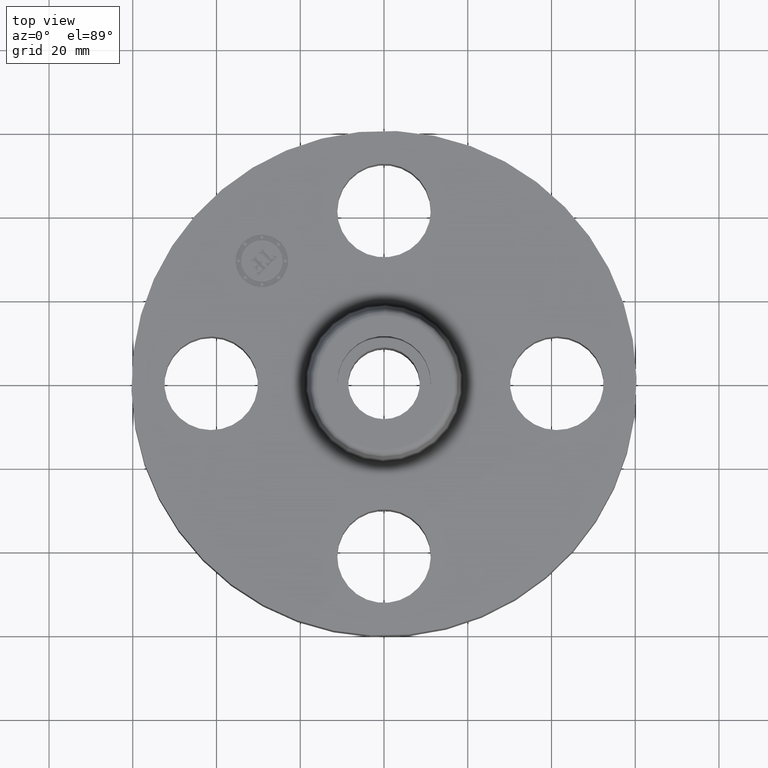
[diagram: clean part render]
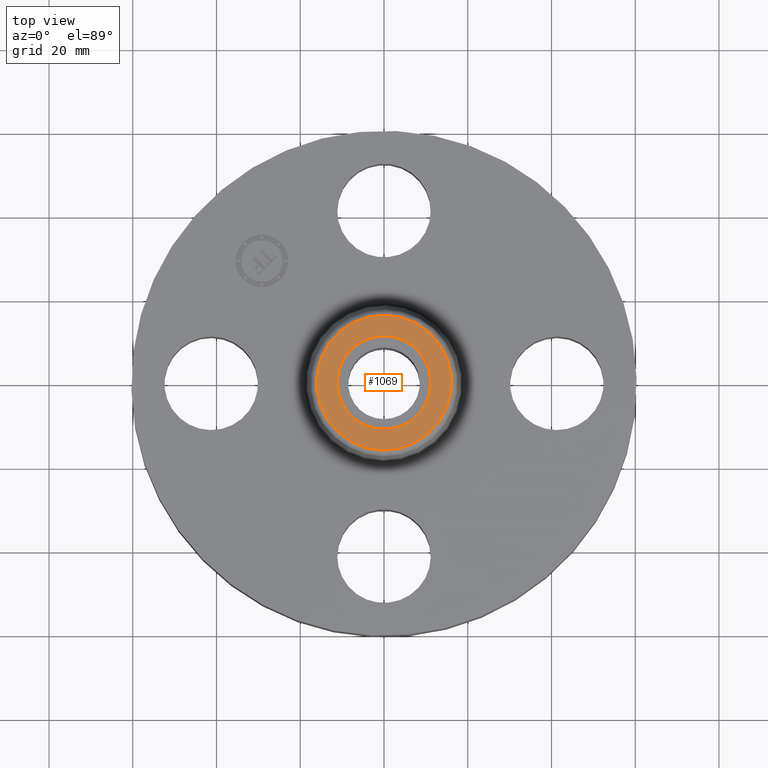
[diagram: same view with one face highlighted and labeled with its STEP entity id]
A machine part, top view. The second image highlights one B-rep face of the part: STEP entity #1069.
In plain terms, the highlighted planar face has unit normal (0, 0, -1).
Its self-contained STEP definition (entity closure, byte-faithful):
#990=AXIS2_PLACEMENT_3D('Circle Axis2P3D',#988,#989,$) ;
#1009=AXIS2_PLACEMENT_3D('Circle Axis2P3D',#1007,#1008,$) ;
#1045=AXIS2_PLACEMENT_3D('Plane Axis2P3D',#1042,#1043,#1044) ;
#1053=AXIS2_PLACEMENT_3D('Circle Axis2P3D',#1051,#1052,$) ;
#1062=AXIS2_PLACEMENT_3D('Circle Axis2P3D',#1060,#1061,$) ;
#985=CARTESIAN_POINT('Vertex',(0.304153813049,0.556749820299,1.25000000001)) ;
#988=CARTESIAN_POINT('Axis2P3D Location',(0.,0.,1.25000000001)) ;
#992=CARTESIAN_POINT('Vertex',(-0.304153813049,-0.556749820299,1.25000000001)) ;
#1007=CARTESIAN_POINT('Axis2P3D Location',(0.,0.,1.25000000001)) ;
#1042=CARTESIAN_POINT('Axis2P3D Location',(0.,0.63441303927,1.25000000001)) ;
#1051=CARTESIAN_POINT('Axis2P3D Location',(6.99353086378E-017,-1.39870617276E-016,1.25000000001)) ;
#1055=CARTESIAN_POINT('Vertex',(-0.386136327233,0.210947236987,1.25000000001)) ;
#1057=CARTESIAN_POINT('Vertex',(0.386136327233,-0.210947236987,1.25000000001)) ;
#1060=CARTESIAN_POINT('Axis2P3D Location',(8.74191357973E-017,-1.39870617276E-016,1.25000000001)) ;
#989=DIRECTION('Axis2P3D Direction',(0.,0.,-0.0393700787402)) ;
#1008=DIRECTION('Axis2P3D Direction',(0.,0.,-0.0393700787402)) ;
#1043=DIRECTION('Axis2P3D Direction',(0.,0.,-0.0393700787402)) ;
#1044=DIRECTION('Axis2P3D XDirection',(0.0393700787402,0.,0.)) ;
#1052=DIRECTION('Axis2P3D Direction',(0.,0.,-0.0393700787402)) ;
#1061=DIRECTION('Axis2P3D Direction',(0.,0.,-0.0393700787402)) ;
#1048=ORIENTED_EDGE('',*,*,#994,.F.) ;
#1049=ORIENTED_EDGE('',*,*,#1011,.F.) ;
#1066=ORIENTED_EDGE('',*,*,#1059,.T.) ;
#1067=ORIENTED_EDGE('',*,*,#1064,.T.) ;
#1068=FACE_BOUND('',#1065,.T.) ;
#1069=ADVANCED_FACE('PartBody',(#1050,#1068),#1046,.F.) ;
#991=CIRCLE('generated circle',#990,0.63441303927) ;
#1010=CIRCLE('generated circle',#1009,0.63441303927) ;
#1054=CIRCLE('generated circle',#1053,0.440000000002) ;
#1063=CIRCLE('generated circle',#1062,0.440000000002) ;
#994=EDGE_CURVE('',#986,#993,#991,.T.) ;
#1011=EDGE_CURVE('',#993,#986,#1010,.T.) ;
#1059=EDGE_CURVE('',#1056,#1058,#1054,.T.) ;
#1064=EDGE_CURVE('',#1058,#1056,#1063,.T.) ;
#1047=EDGE_LOOP('',(#1048,#1049)) ;
#1065=EDGE_LOOP('',(#1066,#1067)) ;
#1050=FACE_OUTER_BOUND('',#1047,.T.) ;
#1046=PLANE('',#1045) ;
#986=VERTEX_POINT('',#985) ;
#993=VERTEX_POINT('',#992) ;
#1056=VERTEX_POINT('',#1055) ;
#1058=VERTEX_POINT('',#1057) ;